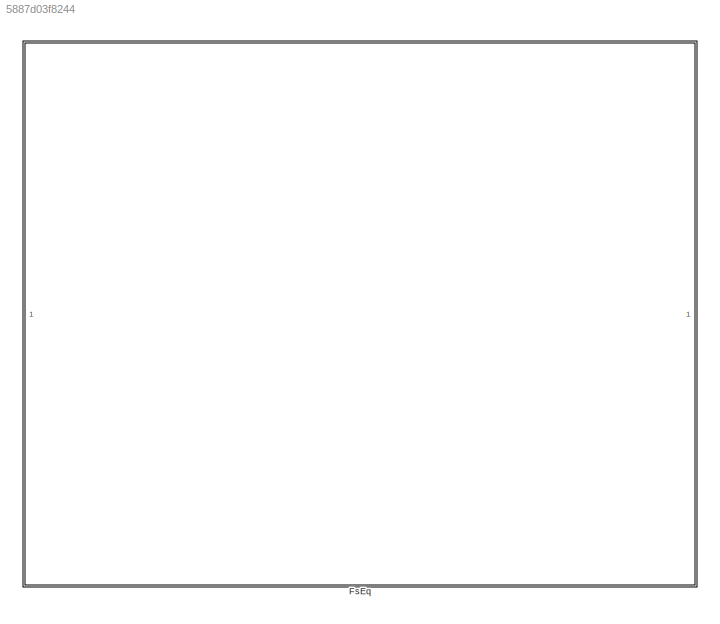
MODEL slx_5887d03f8244
KIND library
CONFIG AbsTol = auto
CONFIG EnableMultiTasking = off
CONFIG FixedStep = auto
CONFIG MaxStep = auto
CONFIG MinStep = auto
CONFIG RelTol = 1e-3
CONFIG SampleTimeConstraint = Unconstrained
CONFIG SolverName = VariableStepAuto
CONFIG StartTime = 0.0
CONFIG StopTime = 10.0
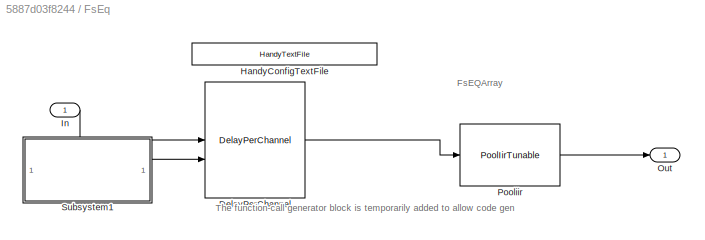
BLOCK [SubSystem] FsEq
BLOCK [Reference] FsEq/DelayPerChannel  REF=TunableDelayBtc/DelayPerChannel
  SourceBlock = TunableDelayBtc/DelayPerChannel
  SourceProductName = Bose Blocklib
  SourceType = Blocklib DelayPerChannel
BLOCK [Reference] FsEq/HandyConfigTextFile  REF=HandyTextFile/HandyTextFile
  SourceBlock = HandyTextFile/HandyTextFile
  SourceProductName = Bose Talaria
  SourceType = Talaria Handy Text File
BLOCK [Inport] FsEq/In
BLOCK [Outport] FsEq/Out
  VectorParamsAs1DForOutWhenUnconnected = off
BLOCK [Reference] FsEq/Pooliir  REF=PoolIir/PoolIirTunable
  SourceBlock = PoolIir/PoolIirTunable
  SourceType = Bose Pool IIR Tunable
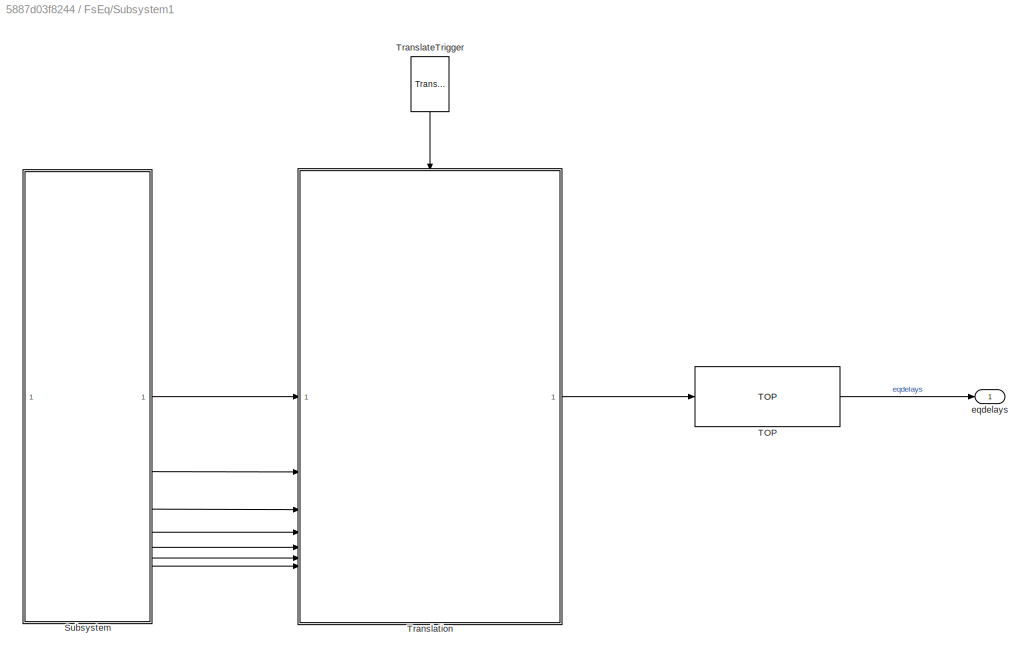
BLOCK [SubSystem] FsEq/Subsystem1
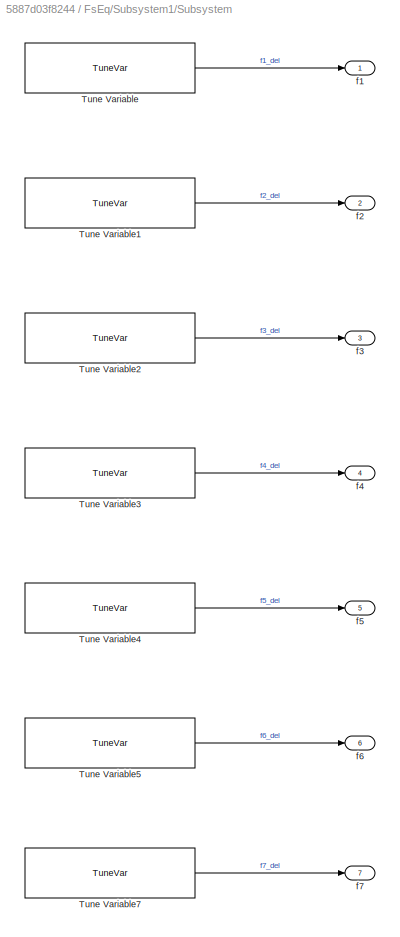
BLOCK [SubSystem] FsEq/Subsystem1/Subsystem
BLOCK [Reference] FsEq/Subsystem1/Subsystem/Tune Variable  REF=TuneVar/TuneVar
  SourceBlock = TuneVar/TuneVar
  SourceProductName = Bose Talaria
  SourceType = Talaria Tune Variable
BLOCK [Reference] FsEq/Subsystem1/Subsystem/Tune Variable1  REF=TuneVar/TuneVar
  SourceBlock = TuneVar/TuneVar
  SourceProductName = Bose Talaria
  SourceType = Talaria Tune Variable
BLOCK [Reference] FsEq/Subsystem1/Subsystem/Tune Variable2  REF=TuneVar/TuneVar
  SourceBlock = TuneVar/TuneVar
  SourceProductName = Bose Talaria
  SourceType = Talaria Tune Variable
BLOCK [Reference] FsEq/Subsystem1/Subsystem/Tune Variable3  REF=TuneVar/TuneVar
  SourceBlock = TuneVar/TuneVar
  SourceProductName = Bose Talaria
  SourceType = Talaria Tune Variable
BLOCK [Reference] FsEq/Subsystem1/Subsystem/Tune Variable4  REF=TuneVar/TuneVar
  SourceBlock = TuneVar/TuneVar
  SourceProductName = Bose Talaria
  SourceType = Talaria Tune Variable
BLOCK [Reference] FsEq/Subsystem1/Subsystem/Tune Variable5  REF=TuneVar/TuneVar
  SourceBlock = TuneVar/TuneVar
  SourceProductName = Bose Talaria
  SourceType = Talaria Tune Variable
BLOCK [Reference] FsEq/Subsystem1/Subsystem/Tune Variable7  REF=TuneVar/TuneVar
  SourceBlock = TuneVar/TuneVar
  SourceProductName = Bose Talaria
  SourceType = Talaria Tune Variable
BLOCK [Outport] FsEq/Subsystem1/Subsystem/f1
BLOCK [Outport] FsEq/Subsystem1/Subsystem/f2
  Port = 2
BLOCK [Outport] FsEq/Subsystem1/Subsystem/f3
  Port = 3
BLOCK [Outport] FsEq/Subsystem1/Subsystem/f4
  Port = 4
BLOCK [Outport] FsEq/Subsystem1/Subsystem/f5
  Port = 5
BLOCK [Outport] FsEq/Subsystem1/Subsystem/f6
  Port = 6
BLOCK [Outport] FsEq/Subsystem1/Subsystem/f7
  Port = 7
BLOCK [Reference] FsEq/Subsystem1/TOP  REF=TOP/TOP
  SourceBlock = TOP/TOP
  SourceProductName = Bose Talaria
  SourceType = Talaria Target Overlay Parameter
BLOCK [Reference] FsEq/Subsystem1/TranslateTrigger  REF=TuneVar/TranslateTrigger
  NameLocation = left
  SourceBlock = TuneVar/TranslateTrigger
  SourceProductName = Bose Talaria
  SourceType = Talaria Translate Trigger
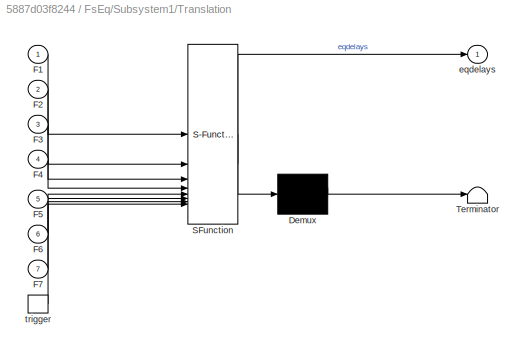
BLOCK [SubSystem] FsEq/Subsystem1/Translation
  ErrorFcn = Stateflow.Translate.translate
  PermitHierarchicalResolution = ExplicitOnly
  SFBlockType = MATLAB Function
  TreatAsAtomicUnit = on
BLOCK [Demux] FsEq/Subsystem1/Translation/ Demux 
  Outputs = 1
BLOCK [S-Function] FsEq/Subsystem1/Translation/ SFunction 
  EnableBusSupport = off
  FunctionName = sf_sfun
  PortCounts = [8 2]
  SFcnIsStateOwnerBlock = off
  SFunctionDeploymentMode = off
  Tag = Stateflow S-Function 3
BLOCK [Terminator] FsEq/Subsystem1/Translation/ Terminator 
BLOCK [Inport] FsEq/Subsystem1/Translation/F1
BLOCK [Inport] FsEq/Subsystem1/Translation/F2
  Port = 2
BLOCK [Inport] FsEq/Subsystem1/Translation/F3
  Port = 3
BLOCK [Inport] FsEq/Subsystem1/Translation/F4
  Port = 4
BLOCK [Inport] FsEq/Subsystem1/Translation/F5
  Port = 5
BLOCK [Inport] FsEq/Subsystem1/Translation/F6
  Port = 6
BLOCK [Inport] FsEq/Subsystem1/Translation/F7
  Port = 7
BLOCK [Outport] FsEq/Subsystem1/Translation/eqdelays
  VectorParamsAs1DForOutWhenUnconnected = off
BLOCK [TriggerPort] FsEq/Subsystem1/Translation/trigger
  ShowOutputPort = on
  StatesWhenEnabling = held
  TriggerType = function-call
  VariantControl = Variant
BLOCK [Outport] FsEq/Subsystem1/eqdelays
ANNOTATION FsEq: FsEQArray
ANNOTATION FsEq: The function-call generator block is temporarily added to allow code gen
LINE FsEq/DelayPerChannel:1 -> FsEq/Pooliir:1
LINE FsEq/In:1 -> FsEq/DelayPerChannel:1
LINE FsEq/Pooliir:1 -> FsEq/Out:1
LINE FsEq/Subsystem1/Subsystem/Tune Variable1:1 -> FsEq/Subsystem1/Subsystem/f2:1
LINE FsEq/Subsystem1/Subsystem/Tune Variable2:1 -> FsEq/Subsystem1/Subsystem/f3:1
LINE FsEq/Subsystem1/Subsystem/Tune Variable3:1 -> FsEq/Subsystem1/Subsystem/f4:1
LINE FsEq/Subsystem1/Subsystem/Tune Variable4:1 -> FsEq/Subsystem1/Subsystem/f5:1
LINE FsEq/Subsystem1/Subsystem/Tune Variable5:1 -> FsEq/Subsystem1/Subsystem/f6:1
LINE FsEq/Subsystem1/Subsystem/Tune Variable7:1 -> FsEq/Subsystem1/Subsystem/f7:1
LINE FsEq/Subsystem1/Subsystem/Tune Variable:1 -> FsEq/Subsystem1/Subsystem/f1:1
LINE FsEq/Subsystem1/Subsystem:1 -> FsEq/Subsystem1/Translation:1
LINE FsEq/Subsystem1/Subsystem:2 -> FsEq/Subsystem1/Translation:2
LINE FsEq/Subsystem1/Subsystem:3 -> FsEq/Subsystem1/Translation:3
LINE FsEq/Subsystem1/Subsystem:4 -> FsEq/Subsystem1/Translation:4
LINE FsEq/Subsystem1/Subsystem:5 -> FsEq/Subsystem1/Translation:5
LINE FsEq/Subsystem1/Subsystem:6 -> FsEq/Subsystem1/Translation:6
LINE FsEq/Subsystem1/Subsystem:7 -> FsEq/Subsystem1/Translation:7
LINE FsEq/Subsystem1/TOP:1 -> FsEq/Subsystem1/eqdelays:1
LINE FsEq/Subsystem1/TranslateTrigger:1 -> FsEq/Subsystem1/Translation:trigger
LINE FsEq/Subsystem1/Translation:1 -> FsEq/Subsystem1/TOP:1
LINE FsEq/Subsystem1:1 -> FsEq/DelayPerChannel:2
CHART FsEq/Subsystem1/Translation states=1 transitions=1
  STATE_LABEL 'eML_blk_kernel()'
  STATE_LABEL 'SCRIPT:\nfunction eqdelays  = fcn(   F1,...\n                            F2,...\n                            F3,...\n                            F4,...\n                            F5,...\n                            F6,...\n                            F7)\n                   \neqdelays = single([ F1.Value,...\n                        F2.Value,...\n                        F3.Value,...\n                       ...<+128ch>'
CHART  states=0 transitions=0
